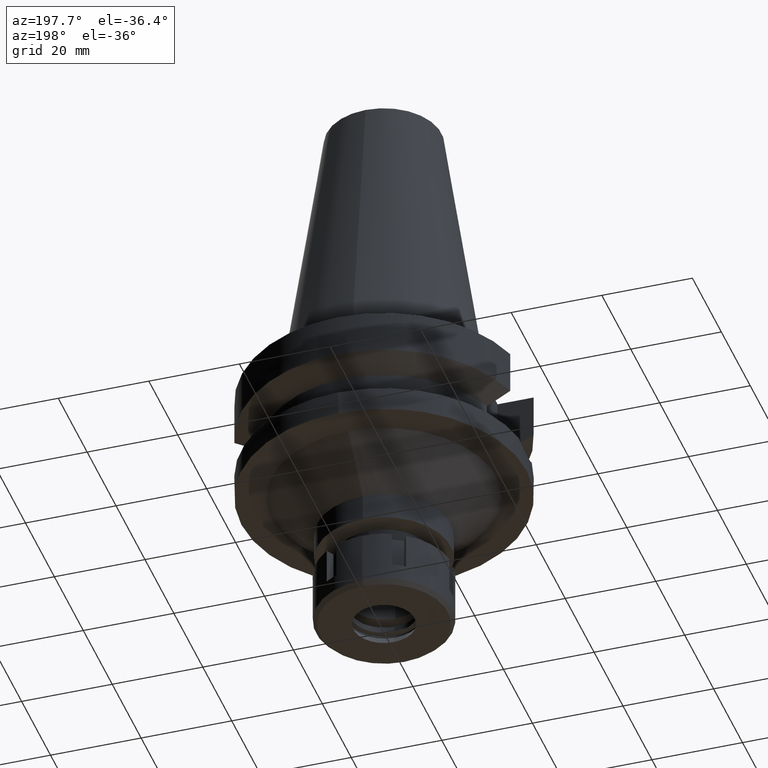
[diagram: clean part render]
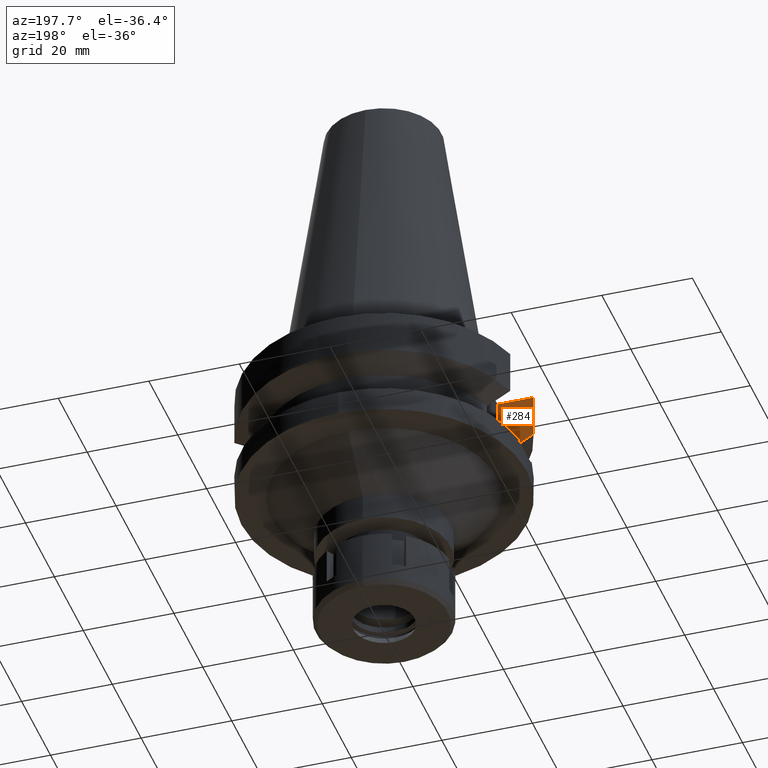
[diagram: same view with one face highlighted and labeled with its STEP entity id]
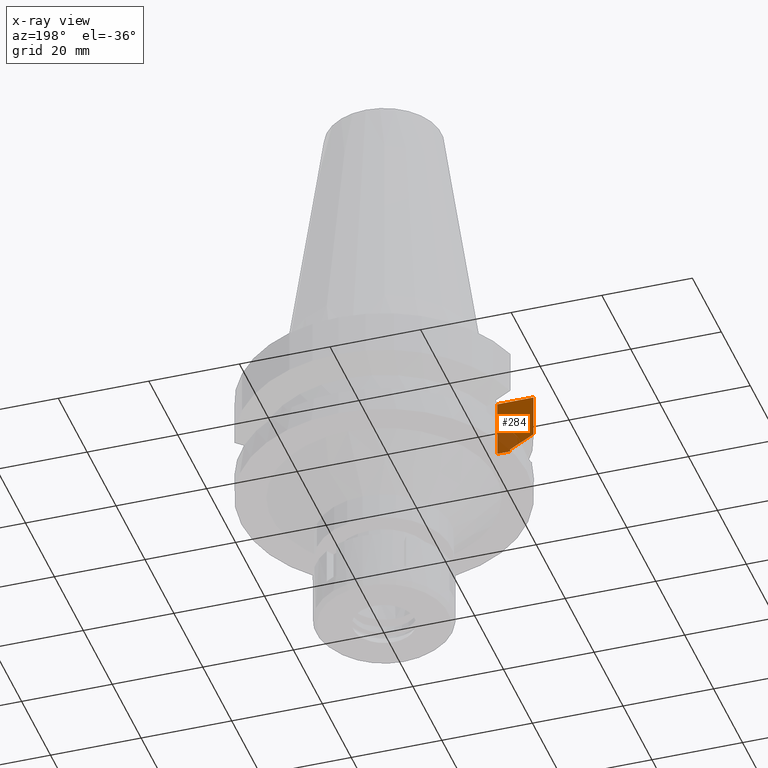
[diagram: x-ray of the same camera — body ghosted, the highlighted face saturated]
A machine part, auxiliary view. The second image highlights one B-rep face of the part: STEP entity #284.
The next image is the same camera in x-ray: the body ghosted, the highlighted face saturated — about 29% of this face is hidden behind the body in this view.
In plain terms, the highlighted planar face has unit normal (0, -1, 0).
Its self-contained STEP definition (entity closure, byte-faithful):
#79 = DIRECTION ( 'NONE',  ( 0.0000000000000000000, 0.0000000000000000000, -1.000000000000000000 ) ) ;
#186 = CARTESIAN_POINT ( 'NONE',  ( -26.83754556832485250, -8.049990713929995323, -13.57774922481988611 ) ) ;
#208 = CARTESIAN_POINT ( 'NONE',  ( -22.50000000000000000, -8.050000000000000711, -14.94999999999999929 ) ) ;
#284 = ADVANCED_FACE ( 'NONE', ( #1455 ), #562, .F. ) ;
#523 = VECTOR ( 'NONE', #3214, 999.9999999999998863 ) ;
#557 = ORIENTED_EDGE ( 'NONE', *, *, #1944, .T. ) ;
#562 = PLANE ( 'NONE',  #2275 ) ;
#633 = CARTESIAN_POINT ( 'NONE',  ( -30.45402291890999891, -8.049999258039999717, -11.56551233533000023 ) ) ;
#839 = CARTESIAN_POINT ( 'NONE',  ( -25.24772266958000344, -8.050000000000000711, -14.94999999999999929 ) ) ;
#1215 = VERTEX_POINT ( 'NONE', #2500 ) ;
#1236 = EDGE_CURVE ( 'NONE', #2669, #1616, #2777, .T. ) ;
#1244 = LINE ( 'NONE', #1525, #523 ) ;
#1246 = ORIENTED_EDGE ( 'NONE', *, *, #3197, .F. ) ;
#1266 = DIRECTION ( 'NONE',  ( -1.000000000000000000, 3.550916904668000126E-14, 0.0000000000000000000 ) ) ;
#1325 = CARTESIAN_POINT ( 'NONE',  ( -22.50000000000000000, -8.050000000000000711, -2.000000000000000000 ) ) ;
#1425 = CARTESIAN_POINT ( 'NONE',  ( -22.50000000000000000, -8.050000000000000711, -2.000000000000000000 ) ) ;
#1438 = CARTESIAN_POINT ( 'NONE',  ( -22.50000000000000000, -8.050000000000000711, -14.94999999999999929 ) ) ;
#1439 = CARTESIAN_POINT ( 'NONE',  ( -22.50000000000000000, -8.050000000000000711, -2.000000000000000000 ) ) ;
#1455 = FACE_OUTER_BOUND ( 'NONE', #1664, .T. ) ;
#1476 = ORIENTED_EDGE ( 'NONE', *, *, #1813, .T. ) ;
#1485 = VECTOR ( 'NONE', #2010, 1000.000000000000000 ) ;
#1491 = VECTOR ( 'NONE', #1266, 1000.000000000000000 ) ;
#1525 = CARTESIAN_POINT ( 'NONE',  ( -25.24772266958000344, -8.050000000000000711, -14.94999999999999929 ) ) ;
#1616 = VERTEX_POINT ( 'NONE', #839 ) ;
#1664 = EDGE_LOOP ( 'NONE', ( #1246, #1476, #2971, #3114, #1713, #557 ) ) ;
#1695 = LINE ( 'NONE', #1425, #2342 ) ;
#1713 = ORIENTED_EDGE ( 'NONE', *, *, #1236, .T. ) ;
#1744 = DIRECTION ( 'NONE',  ( 0.0000000000000000000, 0.0000000000000000000, -1.000000000000000000 ) ) ;
#1791 = VERTEX_POINT ( 'NONE', #1439 ) ;
#1809 = CARTESIAN_POINT ( 'NONE',  ( -30.45402291890999891, -8.049999258039999717, -11.56551233533000023 ) ) ;
#1813 = EDGE_CURVE ( 'NONE', #1943, #2552, #1931, .T. ) ;
#1931 = LINE ( 'NONE', #633, #3351 ) ;
#1943 = VERTEX_POINT ( 'NONE', #1809 ) ;
#1944 = EDGE_CURVE ( 'NONE', #1616, #1215, #1244, .T. ) ;
#1970 = CARTESIAN_POINT ( 'NONE',  ( -30.45402272279000044, -8.050000000000000711, -2.000000000000000000 ) ) ;
#2010 = DIRECTION ( 'NONE',  ( -1.000000000000000000, 1.616208268639000174E-14, -1.357614945656000126E-14 ) ) ;
#2053 = EDGE_CURVE ( 'NONE', #1791, #2669, #1695, .T. ) ;
#2269 = EDGE_CURVE ( 'NONE', #1791, #2552, #2681, .T. ) ;
#2275 = AXIS2_PLACEMENT_3D ( 'NONE', #1438, #2528, #79 ) ;
#2342 = VECTOR ( 'NONE', #1744, 1000.000000000000000 ) ;
#2500 = CARTESIAN_POINT ( 'NONE',  ( -25.24772414833000056, -8.049995362102999152, -14.45229243822999976 ) ) ;
#2528 = DIRECTION ( 'NONE',  ( 0.0000000000000000000, -1.000000000000000000, 0.0000000000000000000 ) ) ;
#2552 = VERTEX_POINT ( 'NONE', #1970 ) ;
#2669 = VERTEX_POINT ( 'NONE', #208 ) ;
#2681 = LINE ( 'NONE', #1325, #1491 ) ;
#2777 = LINE ( 'NONE', #3110, #1485 ) ;
#2826 = DIRECTION ( 'NONE',  ( 2.050319544476988782E-08, -7.756607190603944678E-08, 0.9999999999999967804 ) ) ;
#2853 = B_SPLINE_CURVE_WITH_KNOTS ( 'NONE', 3,
 ( #3212, #3452, #186, #3471 ),
 .UNSPECIFIED., .F., .F.,
 ( 4, 4 ),
 ( 0.0000000000000000000, 1.000000000000000000 ),
 .UNSPECIFIED. ) ;
#2971 = ORIENTED_EDGE ( 'NONE', *, *, #2269, .F. ) ;
#3110 = CARTESIAN_POINT ( 'NONE',  ( -22.50000000000000000, -8.050000000000000711, -14.94999999999999929 ) ) ;
#3114 = ORIENTED_EDGE ( 'NONE', *, *, #2053, .T. ) ;
#3197 = EDGE_CURVE ( 'NONE', #1943, #1215, #2853, .T. ) ;
#3212 = CARTESIAN_POINT ( 'NONE',  ( -30.45402291890999891, -8.049999258039999717, -11.56551233533000023 ) ) ;
#3214 = DIRECTION ( 'NONE',  ( -2.971120544952904661E-06, 9.318518728746708648E-06, 0.9999999999521689276 ) ) ;
#3351 = VECTOR ( 'NONE', #2826, 1000.000000000000114 ) ;
#3452 = CARTESIAN_POINT ( 'NONE',  ( -28.57292272003984834, -8.049998517046464741, -12.61549637975778637 ) ) ;
#3471 = CARTESIAN_POINT ( 'NONE',  ( -25.24772414833000056, -8.049995362102999152, -14.45229243822999976 ) ) ;